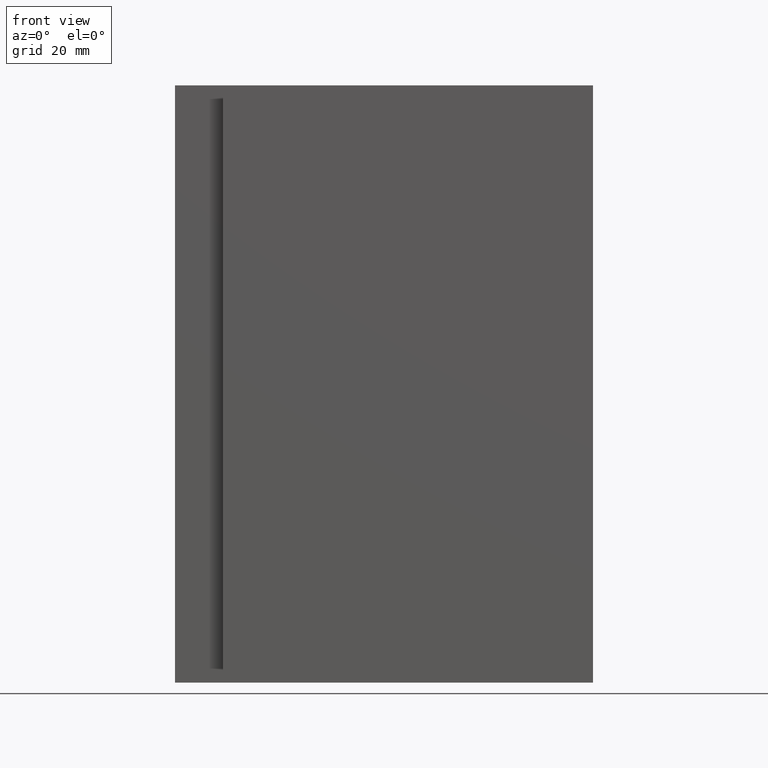
[diagram: clean part render]
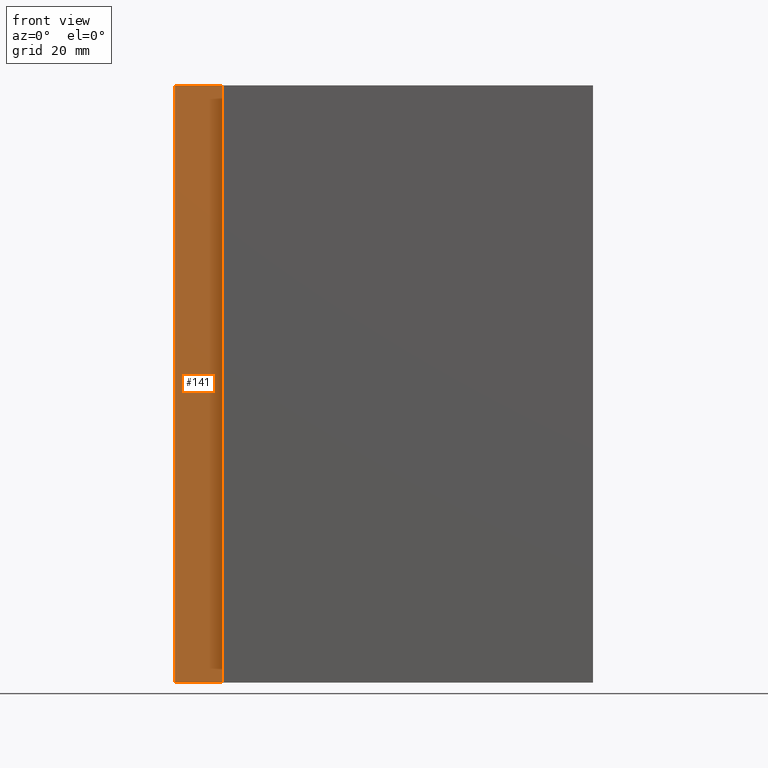
[diagram: same view with one face highlighted and labeled with its STEP entity id]
A machine part, front view. The second image highlights one B-rep face of the part: STEP entity #141.
In plain terms, the highlighted planar face has unit normal (-0, -1, 0).
Its self-contained STEP definition (entity closure, byte-faithful):
#15=FACE_OUTER_BOUND('',#23,.T.);
#23=EDGE_LOOP('',(#97,#98,#99,#100));
#31=LINE('',#211,#49);
#32=LINE('',#213,#50);
#33=LINE('',#215,#51);
#34=LINE('',#216,#52);
#49=VECTOR('',#175,10.);
#50=VECTOR('',#176,10.);
#51=VECTOR('',#177,10.);
#52=VECTOR('',#178,10.);
#67=VERTEX_POINT('',#209);
#68=VERTEX_POINT('',#210);
#69=VERTEX_POINT('',#212);
#70=VERTEX_POINT('',#214);
#79=EDGE_CURVE('',#67,#68,#31,.T.);
#80=EDGE_CURVE('',#68,#69,#32,.T.);
#81=EDGE_CURVE('',#70,#69,#33,.T.);
#82=EDGE_CURVE('',#67,#70,#34,.T.);
#97=ORIENTED_EDGE('',*,*,#79,.T.);
#98=ORIENTED_EDGE('',*,*,#80,.T.);
#99=ORIENTED_EDGE('',*,*,#81,.F.);
#100=ORIENTED_EDGE('',*,*,#82,.F.);
#133=PLANE('',#163);
#141=ADVANCED_FACE('',(#15),#133,.T.);
#163=AXIS2_PLACEMENT_3D('',#208,#173,#174);
#173=DIRECTION('center_axis',(-6.93889390390723E-16,-1.,0.));
#174=DIRECTION('ref_axis',(1.,-6.93889390390723E-16,0.));
#175=DIRECTION('',(1.,-6.93889390390723E-16,0.));
#176=DIRECTION('',(0.,0.,1.));
#177=DIRECTION('',(1.,-6.93889390390723E-16,0.));
#178=DIRECTION('',(0.,0.,1.));
#208=CARTESIAN_POINT('Origin',(-78.,10.5,0.));
#209=CARTESIAN_POINT('',(-78.,10.5,0.));
#210=CARTESIAN_POINT('',(-62.,10.5,0.));
#211=CARTESIAN_POINT('',(-78.,10.5,0.));
#212=CARTESIAN_POINT('',(-62.,10.5,200.));
#213=CARTESIAN_POINT('',(-62.,10.5,0.));
#214=CARTESIAN_POINT('',(-78.,10.5,200.));
#215=CARTESIAN_POINT('',(-78.,10.5,200.));
#216=CARTESIAN_POINT('',(-78.,10.5,0.));